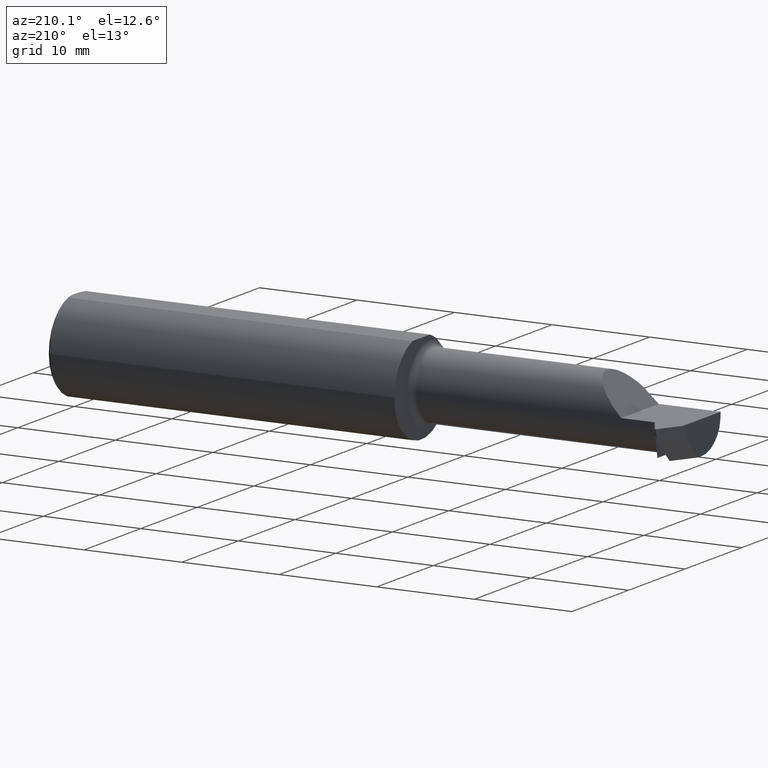
[diagram: clean part render]
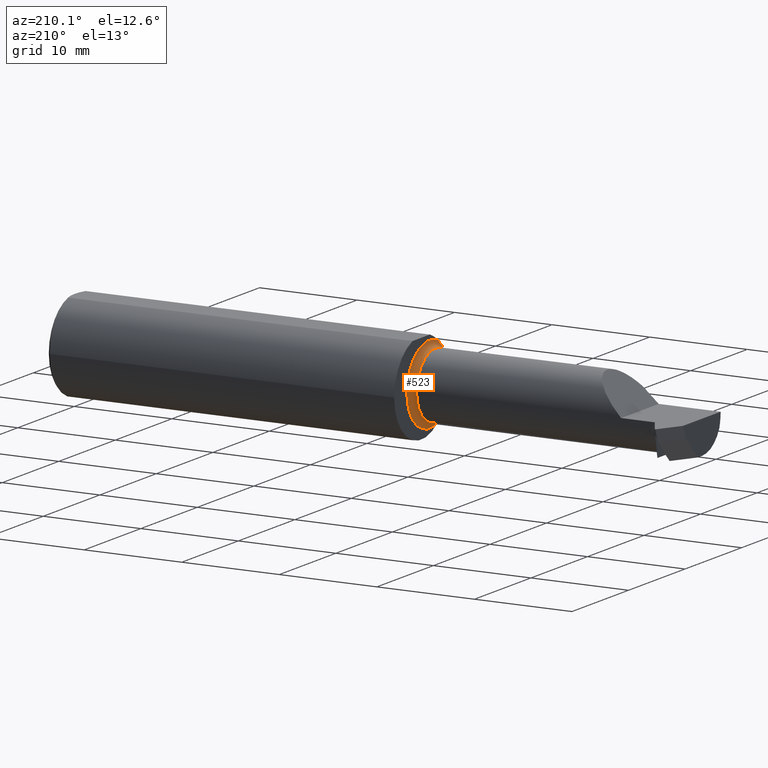
[diagram: same view with one face highlighted and labeled with its STEP entity id]
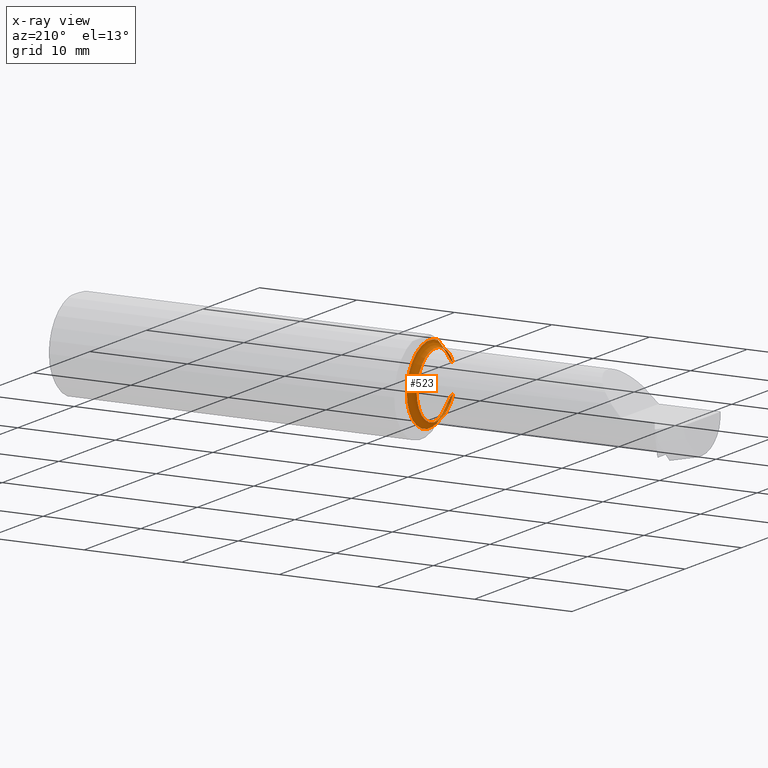
[diagram: x-ray of the same camera — body ghosted, the highlighted face saturated]
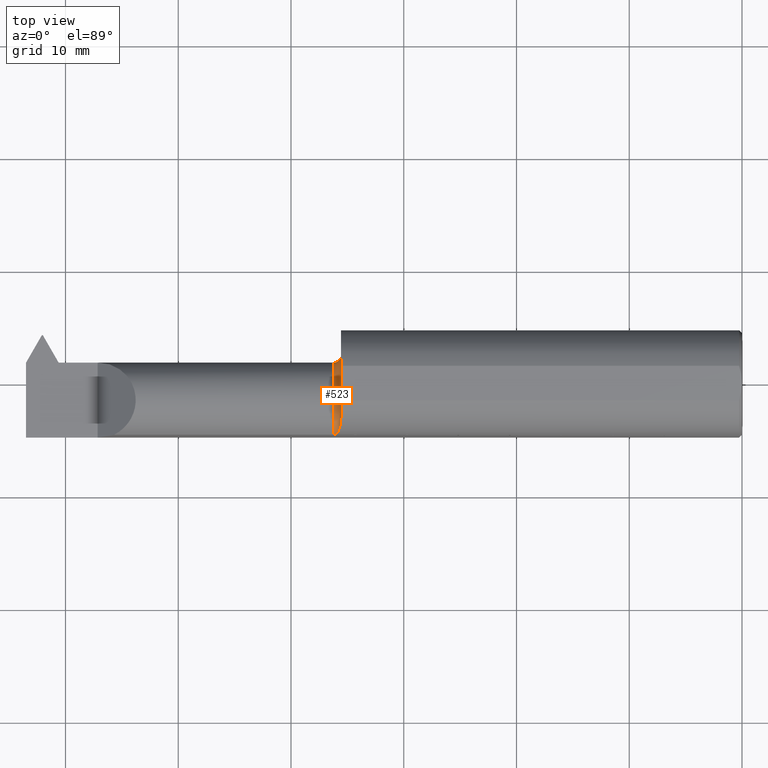
[diagram: same view with one face highlighted and labeled with its STEP entity id]
A machine part, auxiliary view. The second image highlights one B-rep face of the part: STEP entity #523.
The next image is the same camera in x-ray: the body ghosted, the highlighted face saturated — about 2% of this face is hidden behind the body in this view.
A second angle (top view) of the same face is appended — the face is thin or edge-on in the first view.
In plain terms, the highlighted toroidal blend (fillet) surface has major radius 4.0132 mm and minor (blend) radius 0.635 mm.
Its self-contained STEP definition (entity closure, byte-faithful):
#38 = ORIENTED_EDGE ( 'NONE', *, *, #803, .F. ) ;
#42 = CARTESIAN_POINT ( 'NONE',  ( -1.414343418362526750, -0.1730952584121028814, 0.07182162584506034120 ) ) ;
#47 = CARTESIAN_POINT ( 'NONE',  ( -1.401810233260114558, -0.1445504080075222242, -0.1207082908324061121 ) ) ;
#55 = DIRECTION ( 'NONE',  ( -1.000000000000000000, 9.108622265535208572E-17, -0.000000000000000000 ) ) ;
#91 = ORIENTED_EDGE ( 'NONE', *, *, #735, .F. ) ;
#97 = TOROIDAL_SURFACE ( 'NONE', #514, 0.1580000000000003624, 0.02499999999999993894 ) ;
#105 = CARTESIAN_POINT ( 'NONE',  ( -1.399999999999979039, -0.1236042208122572206, 0.1411207813207381034 ) ) ;
#113 = FACE_OUTER_BOUND ( 'NONE', #431, .T. ) ;
#120 = CARTESIAN_POINT ( 'NONE',  ( -1.423749915749442652, -0.1783697086546679744, -0.05730854678360597365 ) ) ;
#125 = CARTESIAN_POINT ( 'NONE',  ( -1.424999999999999600, -0.1783697086546689181, 0.05730854678360410015 ) ) ;
#143 = B_SPLINE_CURVE_WITH_KNOTS ( 'NONE', 3,
 ( #579, #120, #641, #699, #324, #767, #636, #387, #564, #517, #510, #47, #855, #313 ),
 .UNSPECIFIED., .F., .F.,
 ( 4, 2, 2, 2, 2, 2, 4 ),
 ( 1.965724206439678457E-07, 9.384097494423624644E-05, 0.0001874853774678285443, 0.0003747741825150031382, 0.0007493517926093614875, 0.001498507012798072332, 0.002996817453175490767 ),
 .UNSPECIFIED. ) ;
#179 = CARTESIAN_POINT ( 'NONE',  ( -1.406810654710997532, -0.1605151270935945562, 0.09708342838367613192 ) ) ;
#189 = CARTESIAN_POINT ( 'NONE',  ( -1.408844572613942470, -0.1652240583778486482, 0.08882027308812183441 ) ) ;
#201 = B_SPLINE_CURVE_WITH_KNOTS ( 'NONE', 3,
 ( #244, #105, #778, #521, #787, #179, #189, #696, #42, #231, #238, #505, #446, #338, #739, #125 ),
 .UNSPECIFIED., .F., .F.,
 ( 4, 2, 2, 2, 2, 2, 2, 4 ),
 ( 0.0004765446698262938469, 0.001211022660611473043, 0.001945500651396652294, 0.002679978642181831544, 0.003047217637574418242, 0.003230837135270707688, 0.003322646884118846990, 0.003414456632966985424 ),
 .UNSPECIFIED. ) ;
#231 = CARTESIAN_POINT ( 'NONE',  ( -1.417163479082054867, -0.1755340703777918676, 0.06552011612893761383 ) ) ;
#238 = CARTESIAN_POINT ( 'NONE',  ( -1.418195961774019631, -0.1762973784583060366, 0.06343092843766175160 ) ) ;
#241 = CARTESIAN_POINT ( 'NONE',  ( -1.399999999999999911, -0.05835000000000014481, 0.000000000000000000 ) ) ;
#244 = CARTESIAN_POINT ( 'NONE',  ( -1.399999999999999911, -0.1160303770345037788, 0.1470951192431537435 ) ) ;
#247 = DIRECTION ( 'NONE',  ( -9.108622265535208572E-17, -1.000000000000000000, 0.000000000000000000 ) ) ;
#250 = CIRCLE ( 'NONE', #556, 0.1580000000000003624 ) ;
#281 = VERTEX_POINT ( 'NONE', #475 ) ;
#311 = CARTESIAN_POINT ( 'NONE',  ( -1.399999999999999911, -0.1160303770351310548, -0.1470951192429077736 ) ) ;
#313 = CARTESIAN_POINT ( 'NONE',  ( -1.399999999999999911, -0.1160303770351310548, -0.1470951192429077736 ) ) ;
#324 = CARTESIAN_POINT ( 'NONE',  ( -1.420126530293609912, -0.1772957297413630118, -0.06055838166122463201 ) ) ;
#334 = DIRECTION ( 'NONE',  ( 0.000000000000000000, -1.000000000000000000, 0.000000000000000000 ) ) ;
#338 = CARTESIAN_POINT ( 'NONE',  ( -1.422655856876659186, -0.1781552959227965804, 0.05797775639605805970 ) ) ;
#356 = ORIENTED_EDGE ( 'NONE', *, *, #422, .T. ) ;
#387 = CARTESIAN_POINT ( 'NONE',  ( -1.414331470962521431, -0.1730809661842611924, -0.07185561948439896096 ) ) ;
#390 = CARTESIAN_POINT ( 'NONE',  ( -1.424999999999999600, -0.05835000000000014481, 0.000000000000000000 ) ) ;
#422 = EDGE_CURVE ( 'NONE', #706, #502, #250, .T. ) ;
#431 = EDGE_LOOP ( 'NONE', ( #356, #91, #617, #38 ) ) ;
#433 = AXIS2_PLACEMENT_3D ( 'NONE', #809, #655, #334 ) ;
#446 = CARTESIAN_POINT ( 'NONE',  ( -1.420882408083194326, -0.1776276410483735024, 0.05957475000073453320 ) ) ;
#475 = CARTESIAN_POINT ( 'NONE',  ( -1.424999999999999600, -0.1783697086546689181, 0.05730854678360410015 ) ) ;
#502 = VERTEX_POINT ( 'NONE', #311 ) ;
#505 = CARTESIAN_POINT ( 'NONE',  ( -1.420156893127617614, -0.1773094052629642092, 0.06051821018283436160 ) ) ;
#510 = CARTESIAN_POINT ( 'NONE',  ( -1.406840882823496841, -0.1605979928433031168, -0.09695168669191761568 ) ) ;
#514 = AXIS2_PLACEMENT_3D ( 'NONE', #390, #55, #247 ) ;
#517 = CARTESIAN_POINT ( 'NONE',  ( -1.408867519642198696, -0.1652587220708467697, -0.08874743406640565879 ) ) ;
#521 = CARTESIAN_POINT ( 'NONE',  ( -1.402207105173743695, -0.1438831799117039900, 0.1203810775392108040 ) ) ;
#523 = ADVANCED_FACE ( 'NONE', ( #113 ), #97, .F. ) ;
#556 = AXIS2_PLACEMENT_3D ( 'NONE', #241, #848, #567 ) ;
#564 = CARTESIAN_POINT ( 'NONE',  ( -1.412851115778101851, -0.1712424833498245313, -0.07614241156970343039 ) ) ;
#567 = DIRECTION ( 'NONE',  ( 0.000000000000000000, -1.000000000000000000, 0.000000000000000000 ) ) ;
#579 = CARTESIAN_POINT ( 'NONE',  ( -1.424999999999999600, -0.1783697086546688904, -0.05730854678360418342 ) ) ;
#617 = ORIENTED_EDGE ( 'NONE', *, *, #866, .F. ) ;
#636 = CARTESIAN_POINT ( 'NONE',  ( -1.417141984682263267, -0.1755174329696174429, -0.06556455082929178724 ) ) ;
#641 = CARTESIAN_POINT ( 'NONE',  ( -1.422632702519553982, -0.1781504652642074416, -0.05799271583144741116 ) ) ;
#655 = DIRECTION ( 'NONE',  ( -1.000000000000000000, 9.108622265535208572E-17, -0.000000000000000000 ) ) ;
#689 = CIRCLE ( 'NONE', #433, 0.1330000000000004234 ) ;
#696 = CARTESIAN_POINT ( 'NONE',  ( -1.412861924135735858, -0.1712588160411454563, 0.07610809679501795433 ) ) ;
#699 = CARTESIAN_POINT ( 'NONE',  ( -1.420855552425396073, -0.1776175334603387890, -0.05960499283471152460 ) ) ;
#706 = VERTEX_POINT ( 'NONE', #716 ) ;
#716 = CARTESIAN_POINT ( 'NONE',  ( -1.399999999999999911, -0.1160303770345037788, 0.1470951192431537435 ) ) ;
#730 = CARTESIAN_POINT ( 'NONE',  ( -1.424999999999999600, -0.1783697086546688904, -0.05730854678360418342 ) ) ;
#735 = EDGE_CURVE ( 'NONE', #825, #502, #143, .T. ) ;
#739 = CARTESIAN_POINT ( 'NONE',  ( -1.423764212023046705, -0.1783697086546786326, 0.05730854678357379800 ) ) ;
#767 = CARTESIAN_POINT ( 'NONE',  ( -1.418162645443745706, -0.1762760481395234113, -0.06349063590883814723 ) ) ;
#778 = CARTESIAN_POINT ( 'NONE',  ( -1.400459820461650962, -0.1306920593655966079, 0.1345866223284640506 ) ) ;
#787 = CARTESIAN_POINT ( 'NONE',  ( -1.403482061302840922, -0.1498697720273051703, 0.1128244190106236083 ) ) ;
#803 = EDGE_CURVE ( 'NONE', #706, #281, #201, .T. ) ;
#809 = CARTESIAN_POINT ( 'NONE',  ( -1.424999999999999600, -0.05835000000000013787, 0.000000000000000000 ) ) ;
#825 = VERTEX_POINT ( 'NONE', #730 ) ;
#848 = DIRECTION ( 'NONE',  ( -1.000000000000000000, 9.108622265535208572E-17, -0.000000000000000000 ) ) ;
#855 = CARTESIAN_POINT ( 'NONE',  ( -1.399999999999999245, -0.1312984737625736975, -0.1350514632126317838 ) ) ;
#866 = EDGE_CURVE ( 'NONE', #281, #825, #689, .T. ) ;